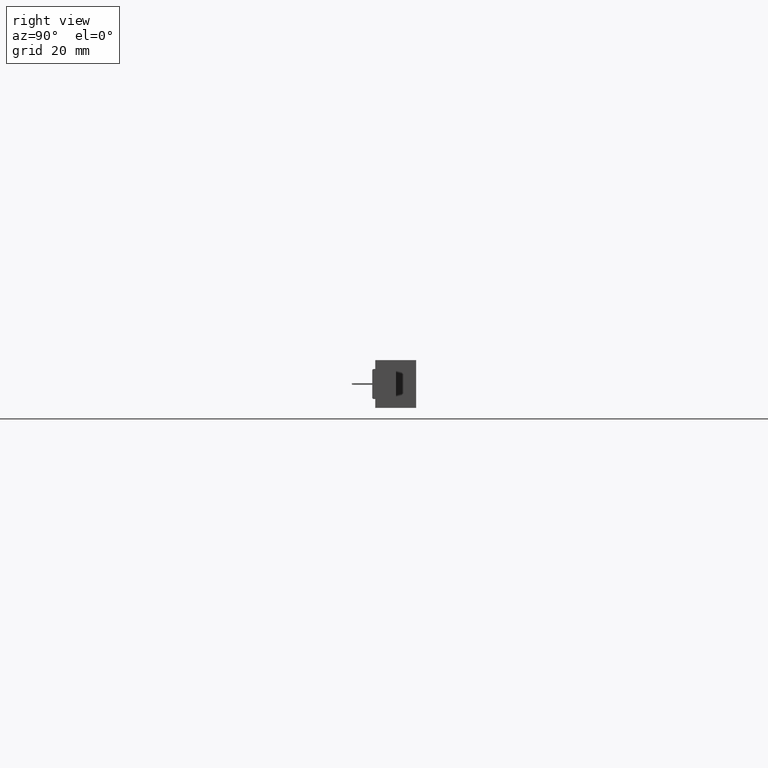
[diagram: clean part render]
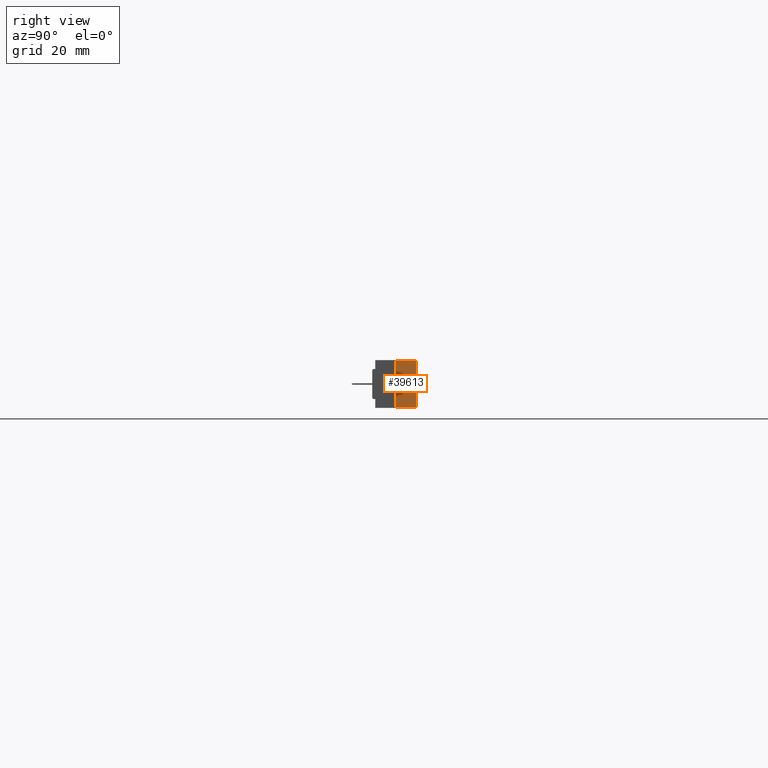
[diagram: same view with one face highlighted and labeled with its STEP entity id]
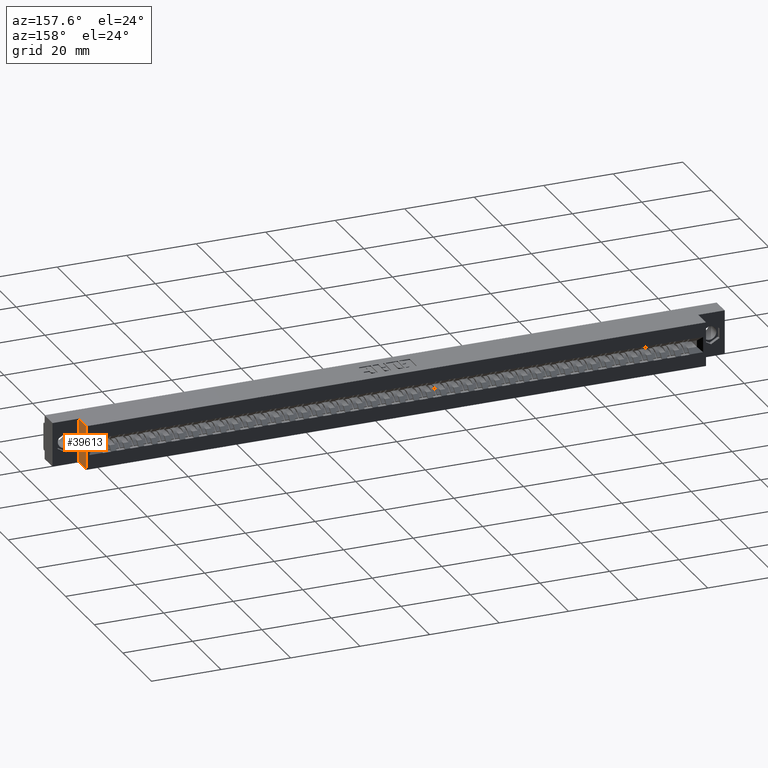
[diagram: same view with one face highlighted and labeled with its STEP entity id]
A machine part, right view. The second image highlights one B-rep face of the part: STEP entity #39613.
A second angle (auxiliary view) of the same face is appended — the face is thin or edge-on in the first view.
In plain terms, the highlighted planar face has unit normal (-1, 0, 0).
Its self-contained STEP definition (entity closure, byte-faithful):
#767 = CARTESIAN_POINT ( 'NONE',  ( 7.316000000000000725, 0.2500000000000000555, -0.4999999999999986122 ) ) ;
#1353 = AXIS2_PLACEMENT_3D ( 'NONE', #11833, #23717, #40034 ) ;
#1737 = CARTESIAN_POINT ( 'NONE',  ( 7.316000000000000725, 0.2500000000000000555, 0.0000000000000000000 ) ) ;
#3538 = DIRECTION ( 'NONE',  ( -0.0000000000000000000, 1.000000000000000000, -0.0000000000000000000 ) ) ;
#3597 = DIRECTION ( 'NONE',  ( -0.0000000000000000000, 1.000000000000000000, -0.0000000000000000000 ) ) ;
#3938 = LINE ( 'NONE', #12683, #17541 ) ;
#6236 = CARTESIAN_POINT ( 'NONE',  ( 7.316000000000000725, 0.2500000000000000555, -0.4999999999999986122 ) ) ;
#6658 = LINE ( 'NONE', #6236, #8620 ) ;
#6703 = CARTESIAN_POINT ( 'NONE',  ( 7.316000000000000725, 0.2500000000000000555, 0.0000000000000000000 ) ) ;
#8420 = VERTEX_POINT ( 'NONE', #14844 ) ;
#8620 = VECTOR ( 'NONE', #3597, 39.37007874015748143 ) ;
#11232 = FACE_OUTER_BOUND ( 'NONE', #15389, .T. ) ;
#11833 = CARTESIAN_POINT ( 'NONE',  ( 7.316000000000000725, 0.2500000000000000555, 0.0000000000000000000 ) ) ;
#12263 = EDGE_CURVE ( 'NONE', #16255, #33516, #29708, .T. ) ;
#12683 = CARTESIAN_POINT ( 'NONE',  ( 7.316000000000000725, 0.2500000000000000555, 0.0000000000000000000 ) ) ;
#14844 = CARTESIAN_POINT ( 'NONE',  ( 7.316000000000000725, 0.4600000000000000200, -0.4999999999999986122 ) ) ;
#15389 = EDGE_LOOP ( 'NONE', ( #26162, #22068, #32031, #34721 ) ) ;
#16255 = VERTEX_POINT ( 'NONE', #767 ) ;
#16330 = CARTESIAN_POINT ( 'NONE',  ( 7.316000000000000725, 0.4600000000000000200, 0.0000000000000000000 ) ) ;
#16720 = LINE ( 'NONE', #16330, #31427 ) ;
#17541 = VECTOR ( 'NONE', #3538, 39.37007874015748143 ) ;
#19762 = EDGE_CURVE ( 'NONE', #33516, #25270, #3938, .T. ) ;
#20208 = DIRECTION ( 'NONE',  ( -0.0000000000000000000, -0.0000000000000000000, 1.000000000000000000 ) ) ;
#22068 = ORIENTED_EDGE ( 'NONE', *, *, #19762, .F. ) ;
#23717 = DIRECTION ( 'NONE',  ( -1.000000000000000000, 0.0000000000000000000, -0.0000000000000000000 ) ) ;
#25270 = VERTEX_POINT ( 'NONE', #25669 ) ;
#25669 = CARTESIAN_POINT ( 'NONE',  ( 7.316000000000000725, 0.4600000000000000200, 0.0000000000000000000 ) ) ;
#26162 = ORIENTED_EDGE ( 'NONE', *, *, #34398, .T. ) ;
#27617 = PLANE ( 'NONE',  #1353 ) ;
#29708 = LINE ( 'NONE', #1737, #35635 ) ;
#31427 = VECTOR ( 'NONE', #20208, 39.37007874015748143 ) ;
#32031 = ORIENTED_EDGE ( 'NONE', *, *, #12263, .F. ) ;
#33516 = VERTEX_POINT ( 'NONE', #6703 ) ;
#34398 = EDGE_CURVE ( 'NONE', #8420, #25270, #16720, .T. ) ;
#34721 = ORIENTED_EDGE ( 'NONE', *, *, #35598, .T. ) ;
#35598 = EDGE_CURVE ( 'NONE', #16255, #8420, #6658, .T. ) ;
#35635 = VECTOR ( 'NONE', #39295, 39.37007874015748143 ) ;
#39295 = DIRECTION ( 'NONE',  ( -0.0000000000000000000, -0.0000000000000000000, 1.000000000000000000 ) ) ;
#39613 = ADVANCED_FACE ( 'NONE', ( #11232 ), #27617, .F. ) ;
#40034 = DIRECTION ( 'NONE',  ( -0.0000000000000000000, 0.0000000000000000000, 1.000000000000000000 ) ) ;